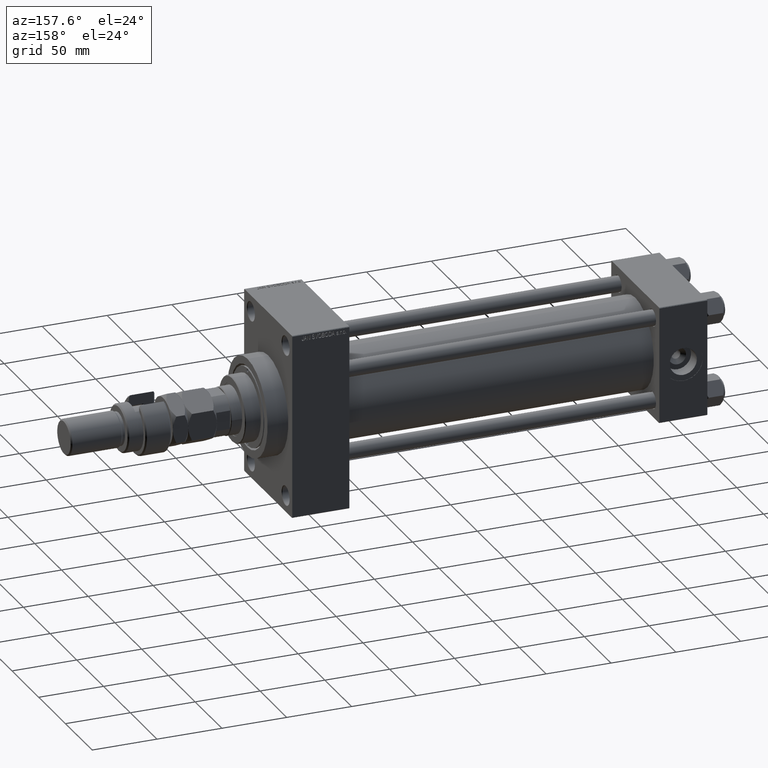
[diagram: clean part render]
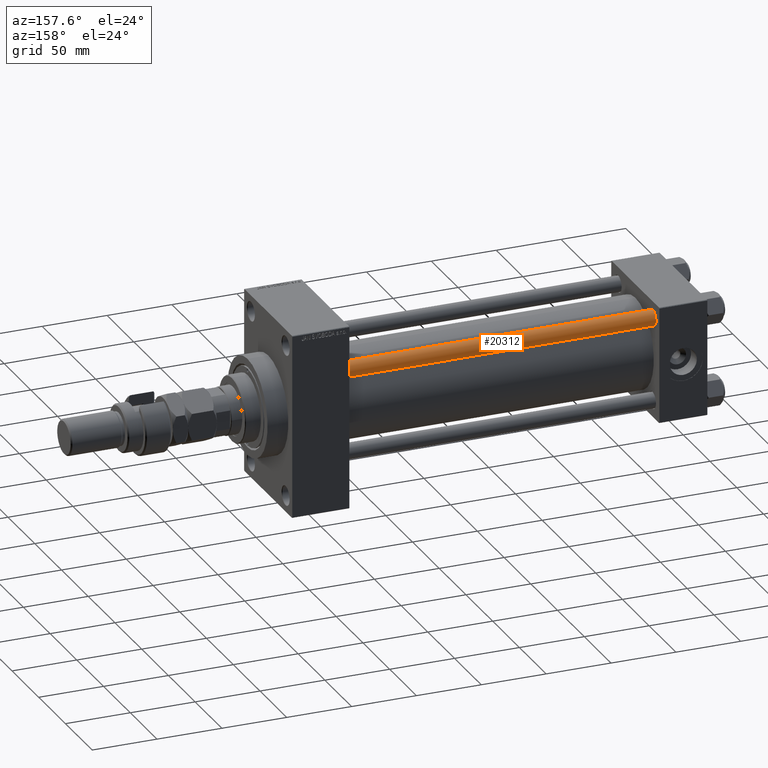
[diagram: same view with one face highlighted and labeled with its STEP entity id]
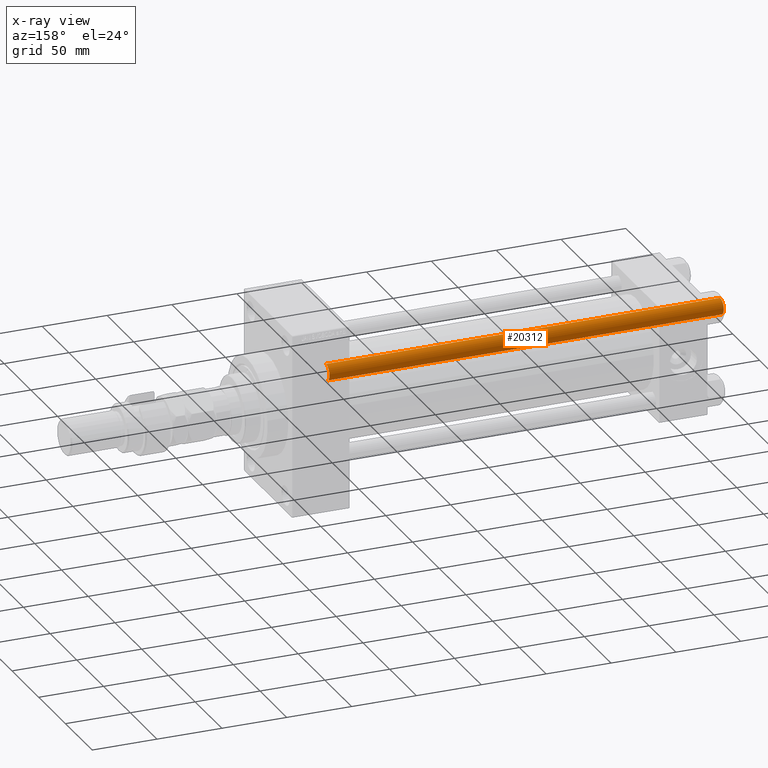
[diagram: x-ray of the same camera — body ghosted, the highlighted face saturated]
A machine part, auxiliary view. The second image highlights one B-rep face of the part: STEP entity #20312.
The next image is the same camera in x-ray: the body ghosted, the highlighted face saturated — about 0% of this face is hidden behind the body in this view.
In plain terms, the highlighted cylindrical surface (edge-blend (fillet) strip) has radius 6 mm, axis along (-1, -0, 0).
Its self-contained STEP definition (entity closure, byte-faithful):
#2999 = DIRECTION ( 'NONE',  ( -0.000000000000000000, -0.000000000000000000, 1.000000000000000000 ) ) ;
#3352 = CARTESIAN_POINT ( 'NONE',  ( -6.000000000000000888, 0.000000000000000000, 0.5000000000000004441 ) ) ;
#7486 = DIRECTION ( 'NONE',  ( -1.000000000000000000, 0.000000000000000000, 0.000000000000000000 ) ) ;
#7635 = CIRCLE ( 'NONE', #16557, 6.000000000000000888 ) ;
#8106 = ORIENTED_EDGE ( 'NONE', *, *, #42979, .T. ) ;
#8132 = CARTESIAN_POINT ( 'NONE',  ( 6.000000000000000888, 7.347880794884120722E-16, 305.0000000000000000 ) ) ;
#10178 = VERTEX_POINT ( 'NONE', #39746 ) ;
#10348 = CARTESIAN_POINT ( 'NONE',  ( 6.000000000000000888, 7.347880794884120722E-16, 304.5000000000000000 ) ) ;
#10432 = AXIS2_PLACEMENT_3D ( 'NONE', #22322, #2999, #18501 ) ;
#10901 = ORIENTED_EDGE ( 'NONE', *, *, #25265, .T. ) ;
#15365 = CYLINDRICAL_SURFACE ( 'NONE', #29714, 6.000000000000000888 ) ;
#16557 = AXIS2_PLACEMENT_3D ( 'NONE', #41105, #26105, #22274 ) ;
#17814 = VECTOR ( 'NONE', #26747, 1000.000000000000000 ) ;
#18501 = DIRECTION ( 'NONE',  ( 1.000000000000000000, 0.000000000000000000, 0.000000000000000000 ) ) ;
#20312 = ADVANCED_FACE ( 'NONE', ( #23267 ), #15365, .T. ) ;
#22274 = DIRECTION ( 'NONE',  ( 1.000000000000000000, 0.000000000000000000, 0.000000000000000000 ) ) ;
#22322 = CARTESIAN_POINT ( 'NONE',  ( 0.000000000000000000, 0.000000000000000000, 0.5000000000000004441 ) ) ;
#23267 = FACE_OUTER_BOUND ( 'NONE', #44391, .T. ) ;
#23662 = DIRECTION ( 'NONE',  ( -0.000000000000000000, -0.000000000000000000, -1.000000000000000000 ) ) ;
#23949 = CARTESIAN_POINT ( 'NONE',  ( 6.000000000000000888, 7.347880794884120722E-16, 0.5000000000000004441 ) ) ;
#25265 = EDGE_CURVE ( 'NONE', #40501, #38290, #40461, .T. ) ;
#26105 = DIRECTION ( 'NONE',  ( 0.000000000000000000, 0.000000000000000000, -1.000000000000000000 ) ) ;
#26747 = DIRECTION ( 'NONE',  ( -0.000000000000000000, -0.000000000000000000, -1.000000000000000000 ) ) ;
#27040 = EDGE_CURVE ( 'NONE', #38506, #40501, #27484, .T. ) ;
#27484 = LINE ( 'NONE', #8132, #38101 ) ;
#28078 = DIRECTION ( 'NONE',  ( -0.000000000000000000, -0.000000000000000000, -1.000000000000000000 ) ) ;
#29714 = AXIS2_PLACEMENT_3D ( 'NONE', #34966, #28078, #7486 ) ;
#30058 = CARTESIAN_POINT ( 'NONE',  ( -6.000000000000000888, 0.000000000000000000, 305.0000000000000000 ) ) ;
#31177 = EDGE_CURVE ( 'NONE', #10178, #38290, #49652, .T. ) ;
#34966 = CARTESIAN_POINT ( 'NONE',  ( 0.000000000000000000, 0.000000000000000000, 305.0000000000000000 ) ) ;
#36506 = ORIENTED_EDGE ( 'NONE', *, *, #27040, .T. ) ;
#37648 = ORIENTED_EDGE ( 'NONE', *, *, #31177, .F. ) ;
#38101 = VECTOR ( 'NONE', #23662, 1000.000000000000000 ) ;
#38290 = VERTEX_POINT ( 'NONE', #3352 ) ;
#38506 = VERTEX_POINT ( 'NONE', #10348 ) ;
#39746 = CARTESIAN_POINT ( 'NONE',  ( -6.000000000000000888, 0.000000000000000000, 304.5000000000000000 ) ) ;
#40461 = CIRCLE ( 'NONE', #10432, 6.000000000000000888 ) ;
#40501 = VERTEX_POINT ( 'NONE', #23949 ) ;
#41105 = CARTESIAN_POINT ( 'NONE',  ( 0.000000000000000000, 0.000000000000000000, 304.5000000000000000 ) ) ;
#42979 = EDGE_CURVE ( 'NONE', #10178, #38506, #7635, .T. ) ;
#44391 = EDGE_LOOP ( 'NONE', ( #8106, #36506, #10901, #37648 ) ) ;
#49652 = LINE ( 'NONE', #30058, #17814 ) ;